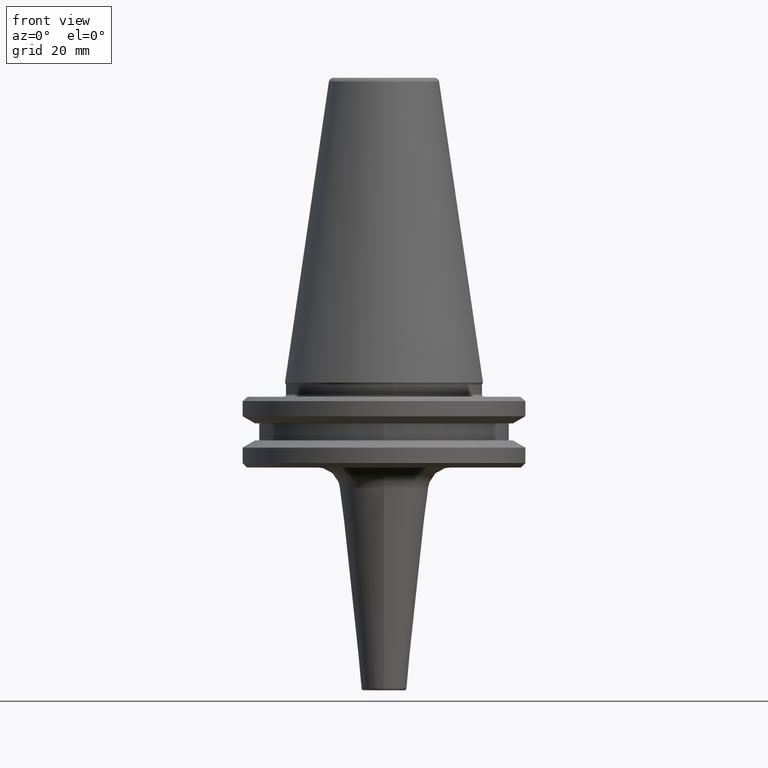
[diagram: clean part render]
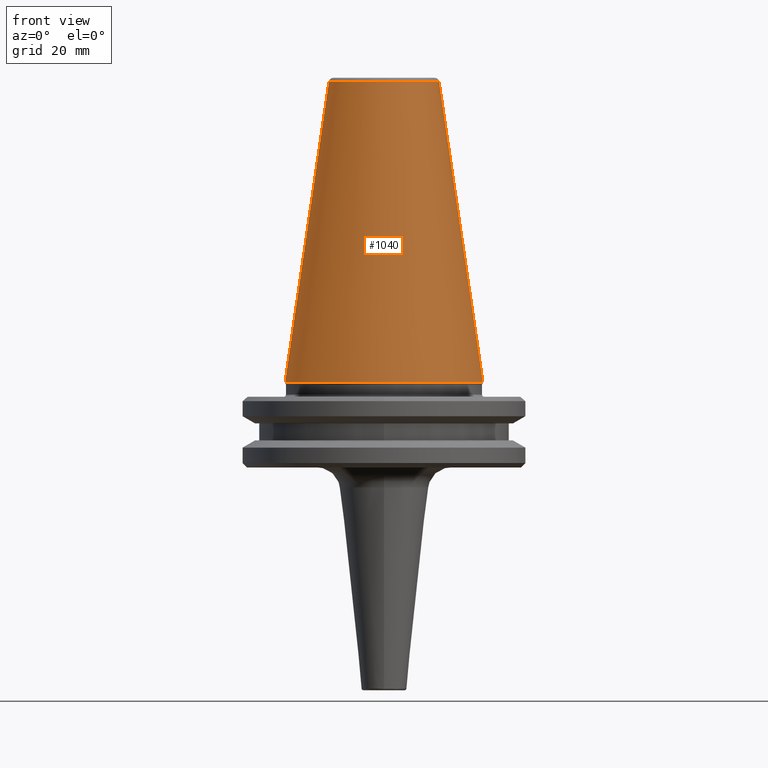
[diagram: same view with one face highlighted and labeled with its STEP entity id]
A machine part, front view. The second image highlights one B-rep face of the part: STEP entity #1040.
In plain terms, the highlighted conical surface has half-angle 8.297 deg.
Its self-contained STEP definition (entity closure, byte-faithful):
#54 = VERTEX_POINT ( 'NONE', #814 ) ;
#175 = ORIENTED_EDGE ( 'NONE', *, *, #617, .T. ) ;
#179 = EDGE_LOOP ( 'NONE', ( #438, #813, #180, #175 ) ) ;
#180 = ORIENTED_EDGE ( 'NONE', *, *, #479, .T. ) ;
#238 = LINE ( 'NONE', #919, #615 ) ;
#240 = CIRCLE ( 'NONE', #939, 12.37469537599809200 ) ;
#338 = EDGE_CURVE ( 'NONE', #54, #887, #585, .T. ) ;
#346 = DIRECTION ( 'NONE',  ( 0.1443082272694599400, 1.767266086161729200E-017, -0.9895327864918603800 ) ) ;
#434 = CARTESIAN_POINT ( 'NONE',  ( 0.0000000000000000000, 0.0000000000000000000, 67.54430822701309000 ) ) ;
#438 = ORIENTED_EDGE ( 'NONE', *, *, #338, .F. ) ;
#448 = CARTESIAN_POINT ( 'NONE',  ( 22.22499999999999800, 0.0000000000000000000, 0.0000000000000000000 ) ) ;
#473 = CARTESIAN_POINT ( 'NONE',  ( 0.0000000000000000000, 0.0000000000000000000, 0.0000000000000000000 ) ) ;
#479 = EDGE_CURVE ( 'NONE', #872, #1335, #238, .T. ) ;
#491 = CARTESIAN_POINT ( 'NONE',  ( -12.37469537590595100, -5.555843992514513000E-010, 67.54430822698967100 ) ) ;
#495 = DIRECTION ( 'NONE',  ( -1.000000000000000000, 0.0000000000000000000, 0.0000000000000000000 ) ) ;
#520 = VECTOR ( 'NONE', #346, 1000.000000000000100 ) ;
#571 = DIRECTION ( 'NONE',  ( -1.000000000000000000, 0.0000000000000000000, 0.0000000000000000000 ) ) ;
#585 = LINE ( 'NONE', #679, #520 ) ;
#615 = VECTOR ( 'NONE', #641, 1000.000000000000100 ) ;
#617 = EDGE_CURVE ( 'NONE', #1335, #887, #1327, .T. ) ;
#641 = DIRECTION ( 'NONE',  ( -0.1443082272694599400, 0.0000000000000000000, -0.9895327864918603800 ) ) ;
#679 = CARTESIAN_POINT ( 'NONE',  ( 22.22499999999999400, 2.721777511104992100E-015, 0.0000000000000000000 ) ) ;
#702 = CARTESIAN_POINT ( 'NONE',  ( 0.0000000000000000000, 0.0000000000000000000, 0.0000000000000000000 ) ) ;
#715 = DIRECTION ( 'NONE',  ( -1.000000000000000000, 0.0000000000000000000, 0.0000000000000000000 ) ) ;
#722 = FACE_OUTER_BOUND ( 'NONE', #179, .T. ) ;
#732 = DIRECTION ( 'NONE',  ( 0.0000000000000000000, 0.0000000000000000000, -1.000000000000000000 ) ) ;
#739 = CARTESIAN_POINT ( 'NONE',  ( -22.22499999999999800, 2.721777511104992500E-015, 0.0000000000000000000 ) ) ;
#812 = DIRECTION ( 'NONE',  ( 0.0000000000000000000, 0.0000000000000000000, -1.000000000000000000 ) ) ;
#813 = ORIENTED_EDGE ( 'NONE', *, *, #1050, .T. ) ;
#814 = CARTESIAN_POINT ( 'NONE',  ( 12.37469537590452100, -2.855354478374084000E-009, 67.54430822699950500 ) ) ;
#835 = DIRECTION ( 'NONE',  ( -0.0000000000000000000, -0.0000000000000000000, 1.000000000000000000 ) ) ;
#848 = CONICAL_SURFACE ( 'NONE', #1216, 22.22499999999999400, 0.1448138465495947800 ) ;
#872 = VERTEX_POINT ( 'NONE', #491 ) ;
#887 = VERTEX_POINT ( 'NONE', #448 ) ;
#919 = CARTESIAN_POINT ( 'NONE',  ( -22.22499999999999400, 0.0000000000000000000, 0.0000000000000000000 ) ) ;
#939 = AXIS2_PLACEMENT_3D ( 'NONE', #434, #812, #571 ) ;
#1040 = ADVANCED_FACE ( 'NONE', ( #722 ), #848, .T. ) ;
#1048 = AXIS2_PLACEMENT_3D ( 'NONE', #473, #835, #715 ) ;
#1050 = EDGE_CURVE ( 'NONE', #54, #872, #240, .T. ) ;
#1216 = AXIS2_PLACEMENT_3D ( 'NONE', #702, #732, #495 ) ;
#1327 = CIRCLE ( 'NONE', #1048, 22.22499999999999400 ) ;
#1335 = VERTEX_POINT ( 'NONE', #739 ) ;